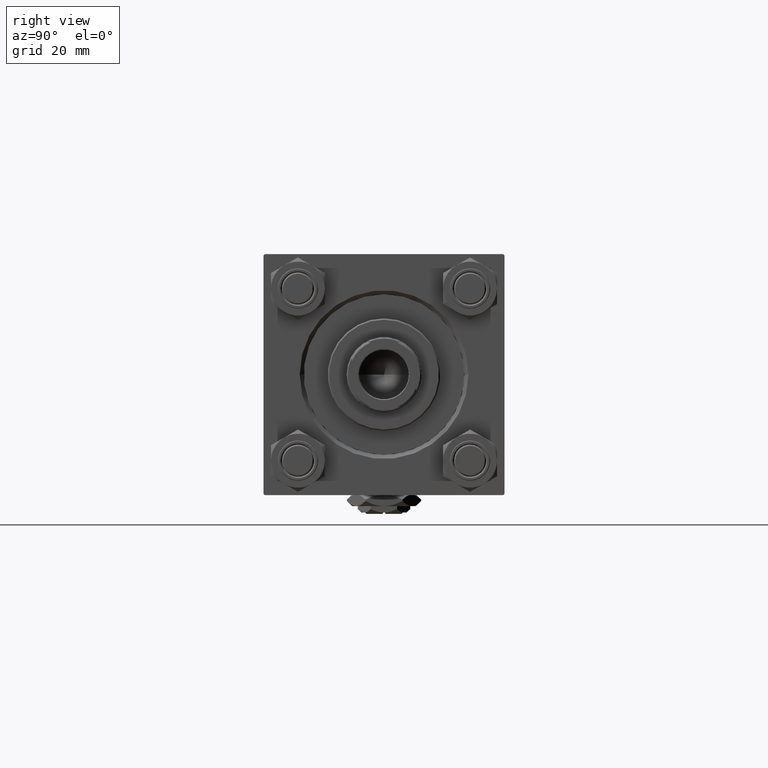
[diagram: clean part render]
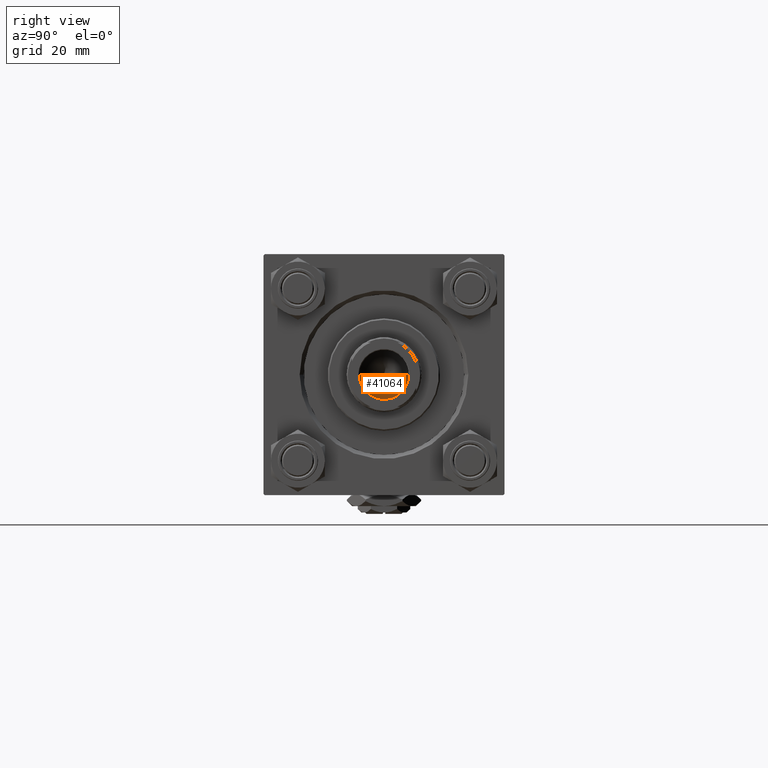
[diagram: same view with one face highlighted and labeled with its STEP entity id]
A machine part, right view. The second image highlights one B-rep face of the part: STEP entity #41064.
In plain terms, the highlighted conical surface has half-angle 59 deg.
Its self-contained STEP definition (entity closure, byte-faithful):
#2813 = FACE_OUTER_BOUND ( 'NONE', #47933, .T. ) ;
#3404 = LINE ( 'NONE', #19387, #48708 ) ;
#4804 = AXIS2_PLACEMENT_3D ( 'NONE', #6754, #20265, #24193 ) ;
#5344 = ORIENTED_EDGE ( 'NONE', *, *, #35334, .F. ) ;
#6754 = CARTESIAN_POINT ( 'NONE',  ( 0.000000000000000000, 0.000000000000000000, 114.9999999999999858 ) ) ;
#6969 = DIRECTION ( 'NONE',  ( -0.000000000000000000, -0.000000000000000000, 1.000000000000000000 ) ) ;
#11567 = CARTESIAN_POINT ( 'NONE',  ( -9.769621978240258809E-15, 0.000000000000000000, 109.4420392739950501 ) ) ;
#12924 = LINE ( 'NONE', #13188, #21739 ) ;
#13188 = CARTESIAN_POINT ( 'NONE',  ( 9.249999999999992895, 0.000000000000000000, 114.9999999999999858 ) ) ;
#13295 = CIRCLE ( 'NONE', #48401, 9.249999999999992895 ) ;
#13415 = VERTEX_POINT ( 'NONE', #11567 ) ;
#17759 = ORIENTED_EDGE ( 'NONE', *, *, #29337, .T. ) ;
#17862 = VERTEX_POINT ( 'NONE', #49084 ) ;
#19387 = CARTESIAN_POINT ( 'NONE',  ( -9.249999999999992895, 1.132798289211300712E-15, 114.9999999999999858 ) ) ;
#19453 = CARTESIAN_POINT ( 'NONE',  ( 9.249999999999992895, 0.000000000000000000, 114.9999999999999858 ) ) ;
#20265 = DIRECTION ( 'NONE',  ( -0.000000000000000000, -0.000000000000000000, 1.000000000000000000 ) ) ;
#21739 = VECTOR ( 'NONE', #33091, 1000.000000000000000 ) ;
#22936 = DIRECTION ( 'NONE',  ( 1.000000000000000000, 0.000000000000000000, 0.000000000000000000 ) ) ;
#24193 = DIRECTION ( 'NONE',  ( 1.000000000000000000, 0.000000000000000000, 0.000000000000000000 ) ) ;
#27399 = CONICAL_SURFACE ( 'NONE', #4804, 9.249999999999992895, 1.029744258676653423 ) ;
#28605 = CARTESIAN_POINT ( 'NONE',  ( 0.000000000000000000, 0.000000000000000000, 114.9999999999999858 ) ) ;
#29337 = EDGE_CURVE ( 'NONE', #13415, #36877, #12924, .T. ) ;
#31567 = ORIENTED_EDGE ( 'NONE', *, *, #44370, .T. ) ;
#33091 = DIRECTION ( 'NONE',  ( 0.8571673007021117785, 0.000000000000000000, 0.5150380749100550437 ) ) ;
#35334 = EDGE_CURVE ( 'NONE', #13415, #17862, #3404, .T. ) ;
#35355 = DIRECTION ( 'NONE',  ( -0.8571673007021117785, 1.049727191138617956E-16, 0.5150380749100550437 ) ) ;
#36877 = VERTEX_POINT ( 'NONE', #19453 ) ;
#41064 = ADVANCED_FACE ( 'NONE', ( #2813 ), #27399, .F. ) ;
#44370 = EDGE_CURVE ( 'NONE', #36877, #17862, #13295, .T. ) ;
#47933 = EDGE_LOOP ( 'NONE', ( #5344, #17759, #31567 ) ) ;
#48401 = AXIS2_PLACEMENT_3D ( 'NONE', #28605, #6969, #22936 ) ;
#48708 = VECTOR ( 'NONE', #35355, 1000.000000000000000 ) ;
#49084 = CARTESIAN_POINT ( 'NONE',  ( -9.249999999999992895, 1.132798289211300712E-15, 114.9999999999999858 ) ) ;